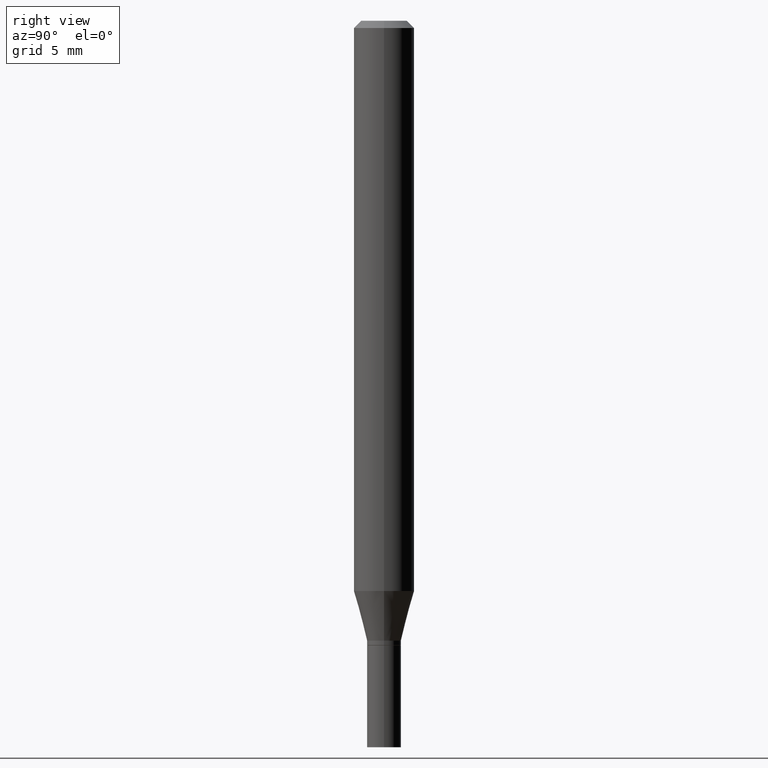
[diagram: clean part render]
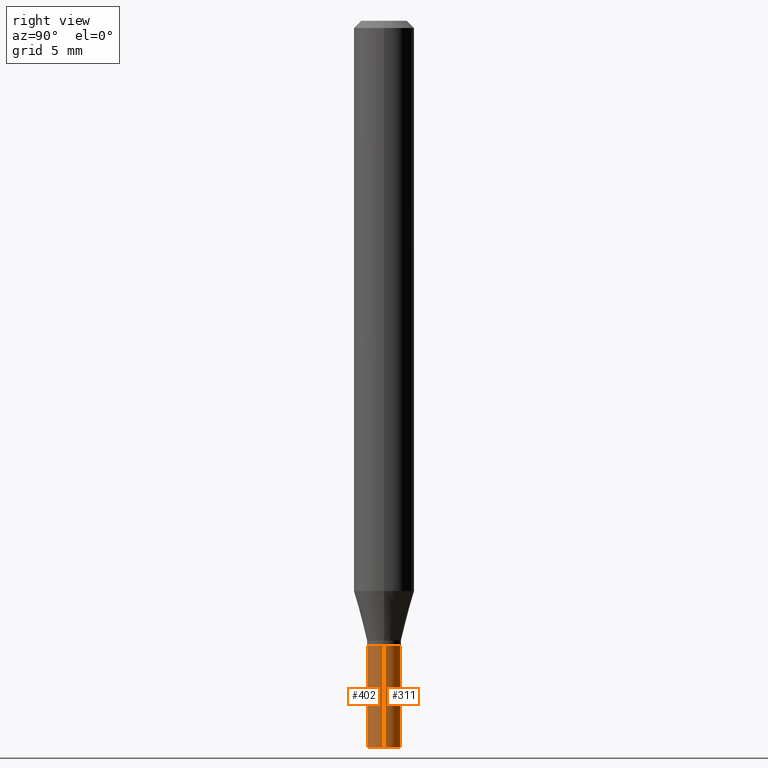
[diagram: same view with one multi-face feature highlighted, each face labeled with its STEP entity id]
A machine part, right view. The highlighted faces form ONE feature: a constant-radius fillet chain: 2 tangent blend faces with common blend radius 0.889 mm. The faces share edges in the B-rep.
Their STEP definitions:
[1] entity #402 (Cylinder):
#1 = DIRECTION ( 'NONE',  ( 1.000000000000000000, -6.982962677686276966E-15, 0.000000000000000000 ) ) ;
#5 = CARTESIAN_POINT ( 'NONE',  ( 0.03500000000000000333, -4.748414620826678245E-15, -1.290000000000000258 ) ) ;
#27 = CARTESIAN_POINT ( 'NONE',  ( -0.03500000000000000333, -4.621926510170152942E-15, -1.290000000000000258 ) ) ;
#39 = DIRECTION ( 'NONE',  ( -2.445468806185136597E-29, 3.491481338843145583E-15, 1.000000000000000000 ) ) ;
#45 = AXIS2_PLACEMENT_3D ( 'NONE', #219, #39, #361 ) ;
#78 = VERTEX_POINT ( 'NONE', #347 ) ;
#83 = CARTESIAN_POINT ( 'NONE',  ( 0.03500000000000000333, -2.444036937190193250E-16, 1.706661871528577808E-30 ) ) ;
#96 = EDGE_LOOP ( 'NONE', ( #225, #163, #231, #297 ) ) ;
#97 = AXIS2_PLACEMENT_3D ( 'NONE', #213, #183, #1 ) ;
#125 = VERTEX_POINT ( 'NONE', #376 ) ;
#140 = EDGE_CURVE ( 'NONE', #78, #125, #408, .T. ) ;
#158 = VERTEX_POINT ( 'NONE', #5 ) ;
#163 = ORIENTED_EDGE ( 'NONE', *, *, #140, .T. ) ;
#183 = DIRECTION ( 'NONE',  ( -2.445468806185136597E-29, 3.491481338843145583E-15, 1.000000000000000000 ) ) ;
#211 = VECTOR ( 'NONE', #263, 39.37007874015748143 ) ;
#213 = CARTESIAN_POINT ( 'NONE',  ( 3.154654759978826367E-29, -4.504010927107658279E-15, -1.290000000000000258 ) ) ;
#219 = CARTESIAN_POINT ( 'NONE',  ( 0.000000000000000000, 0.000000000000000000, 0.000000000000000000 ) ) ;
#225 = ORIENTED_EDGE ( 'NONE', *, *, #380, .F. ) ;
#230 = EDGE_CURVE ( 'NONE', #125, #158, #430, .T. ) ;
#231 = ORIENTED_EDGE ( 'NONE', *, *, #230, .T. ) ;
#263 = DIRECTION ( 'NONE',  ( -2.445468806185136877E-29, 3.491481338843145188E-15, 1.000000000000000000 ) ) ;
#285 = CARTESIAN_POINT ( 'NONE',  ( -0.03500000000000000333, 2.486899575160350887E-16, -1.721627281589217108E-30 ) ) ;
#288 = CYLINDRICAL_SURFACE ( 'NONE', #45, 0.03500000000000000333 ) ;
#293 = CIRCLE ( 'NONE', #97, 0.03500000000000000333 ) ;
#297 = ORIENTED_EDGE ( 'NONE', *, *, #440, .F. ) ;
#302 = VECTOR ( 'NONE', #422, 39.37007874015748143 ) ;
#308 = AXIS2_PLACEMENT_3D ( 'NONE', #340, #343, #312 ) ;
#312 = DIRECTION ( 'NONE',  ( 1.000000000000000000, -6.982962677686276966E-15, 0.000000000000000000 ) ) ;
#331 = VERTEX_POINT ( 'NONE', #27 ) ;
#340 = CARTESIAN_POINT ( 'NONE',  ( 3.668203209277704895E-29, -5.237222008264718177E-15, -1.500000000000000222 ) ) ;
#343 = DIRECTION ( 'NONE',  ( -2.445468806185136597E-29, 3.491481338843145583E-15, 1.000000000000000000 ) ) ;
#347 = CARTESIAN_POINT ( 'NONE',  ( -0.03500000000000000333, -4.621926510170152942E-15, -1.500000000000000222 ) ) ;
#348 = LINE ( 'NONE', #285, #302 ) ;
#361 = DIRECTION ( 'NONE',  ( 1.000000000000000000, -6.982962677686265922E-15, 4.876176775795936353E-29 ) ) ;
#376 = CARTESIAN_POINT ( 'NONE',  ( 0.03500000000000000333, -5.481625701983738143E-15, -1.500000000000000222 ) ) ;
#380 = EDGE_CURVE ( 'NONE', #78, #331, #348, .T. ) ;
#402 = ADVANCED_FACE ( 'NONE', ( #429 ), #288, .T. ) ;
#408 = CIRCLE ( 'NONE', #308, 0.03500000000000000333 ) ;
#422 = DIRECTION ( 'NONE',  ( -2.445468806185136877E-29, 3.491481338843145188E-15, 1.000000000000000000 ) ) ;
#429 = FACE_OUTER_BOUND ( 'NONE', #96, .T. ) ;
#430 = LINE ( 'NONE', #83, #211 ) ;
#440 = EDGE_CURVE ( 'NONE', #331, #158, #293, .T. ) ;
[2] entity #311 (Cylinder):
#5 = CARTESIAN_POINT ( 'NONE',  ( 0.03500000000000000333, -4.748414620826678245E-15, -1.290000000000000258 ) ) ;
#27 = CARTESIAN_POINT ( 'NONE',  ( -0.03500000000000000333, -4.621926510170152942E-15, -1.290000000000000258 ) ) ;
#36 = FACE_OUTER_BOUND ( 'NONE', #337, .T. ) ;
#50 = ORIENTED_EDGE ( 'NONE', *, *, #435, .T. ) ;
#67 = DIRECTION ( 'NONE',  ( 1.000000000000000000, -6.982962677686276966E-15, 0.000000000000000000 ) ) ;
#73 = DIRECTION ( 'NONE',  ( -2.445468806185136597E-29, 3.491481338843145583E-15, 1.000000000000000000 ) ) ;
#78 = VERTEX_POINT ( 'NONE', #347 ) ;
#83 = CARTESIAN_POINT ( 'NONE',  ( 0.03500000000000000333, -2.444036937190193250E-16, 1.706661871528577808E-30 ) ) ;
#84 = ORIENTED_EDGE ( 'NONE', *, *, #380, .T. ) ;
#103 = CARTESIAN_POINT ( 'NONE',  ( 3.154654759978826367E-29, -4.504010927107658279E-15, -1.290000000000000258 ) ) ;
#125 = VERTEX_POINT ( 'NONE', #376 ) ;
#127 = AXIS2_PLACEMENT_3D ( 'NONE', #344, #385, #463 ) ;
#135 = CIRCLE ( 'NONE', #432, 0.03500000000000000333 ) ;
#148 = DIRECTION ( 'NONE',  ( -2.445468806185136597E-29, 3.491481338843145583E-15, 1.000000000000000000 ) ) ;
#158 = VERTEX_POINT ( 'NONE', #5 ) ;
#178 = CYLINDRICAL_SURFACE ( 'NONE', #127, 0.03500000000000000333 ) ;
#180 = CIRCLE ( 'NONE', #358, 0.03500000000000000333 ) ;
#211 = VECTOR ( 'NONE', #263, 39.37007874015748143 ) ;
#217 = DIRECTION ( 'NONE',  ( 1.000000000000000000, -6.982962677686276966E-15, 0.000000000000000000 ) ) ;
#230 = EDGE_CURVE ( 'NONE', #125, #158, #430, .T. ) ;
#263 = DIRECTION ( 'NONE',  ( -2.445468806185136877E-29, 3.491481338843145188E-15, 1.000000000000000000 ) ) ;
#285 = CARTESIAN_POINT ( 'NONE',  ( -0.03500000000000000333, 2.486899575160350887E-16, -1.721627281589217108E-30 ) ) ;
#292 = CARTESIAN_POINT ( 'NONE',  ( 3.668203209277704895E-29, -5.237222008264718177E-15, -1.500000000000000222 ) ) ;
#302 = VECTOR ( 'NONE', #422, 39.37007874015748143 ) ;
#311 = ADVANCED_FACE ( 'NONE', ( #36 ), #178, .T. ) ;
#331 = VERTEX_POINT ( 'NONE', #27 ) ;
#333 = ORIENTED_EDGE ( 'NONE', *, *, #230, .F. ) ;
#337 = EDGE_LOOP ( 'NONE', ( #50, #84, #437, #333 ) ) ;
#344 = CARTESIAN_POINT ( 'NONE',  ( 0.000000000000000000, 0.000000000000000000, 0.000000000000000000 ) ) ;
#347 = CARTESIAN_POINT ( 'NONE',  ( -0.03500000000000000333, -4.621926510170152942E-15, -1.500000000000000222 ) ) ;
#348 = LINE ( 'NONE', #285, #302 ) ;
#358 = AXIS2_PLACEMENT_3D ( 'NONE', #103, #73, #67 ) ;
#365 = EDGE_CURVE ( 'NONE', #158, #331, #180, .T. ) ;
#376 = CARTESIAN_POINT ( 'NONE',  ( 0.03500000000000000333, -5.481625701983738143E-15, -1.500000000000000222 ) ) ;
#380 = EDGE_CURVE ( 'NONE', #78, #331, #348, .T. ) ;
#385 = DIRECTION ( 'NONE',  ( -2.445468806185136597E-29, 3.491481338843145583E-15, 1.000000000000000000 ) ) ;
#422 = DIRECTION ( 'NONE',  ( -2.445468806185136877E-29, 3.491481338843145188E-15, 1.000000000000000000 ) ) ;
#430 = LINE ( 'NONE', #83, #211 ) ;
#432 = AXIS2_PLACEMENT_3D ( 'NONE', #292, #148, #217 ) ;
#435 = EDGE_CURVE ( 'NONE', #125, #78, #135, .T. ) ;
#437 = ORIENTED_EDGE ( 'NONE', *, *, #365, .F. ) ;
#463 = DIRECTION ( 'NONE',  ( 1.000000000000000000, -6.982962677686265922E-15, 4.876176775795936353E-29 ) ) ;